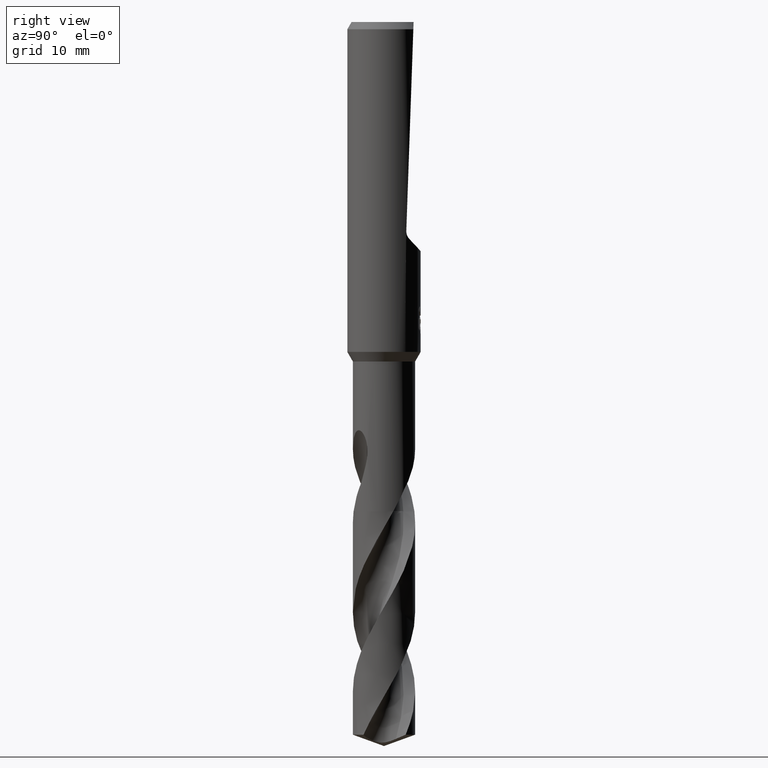
[diagram: clean part render]
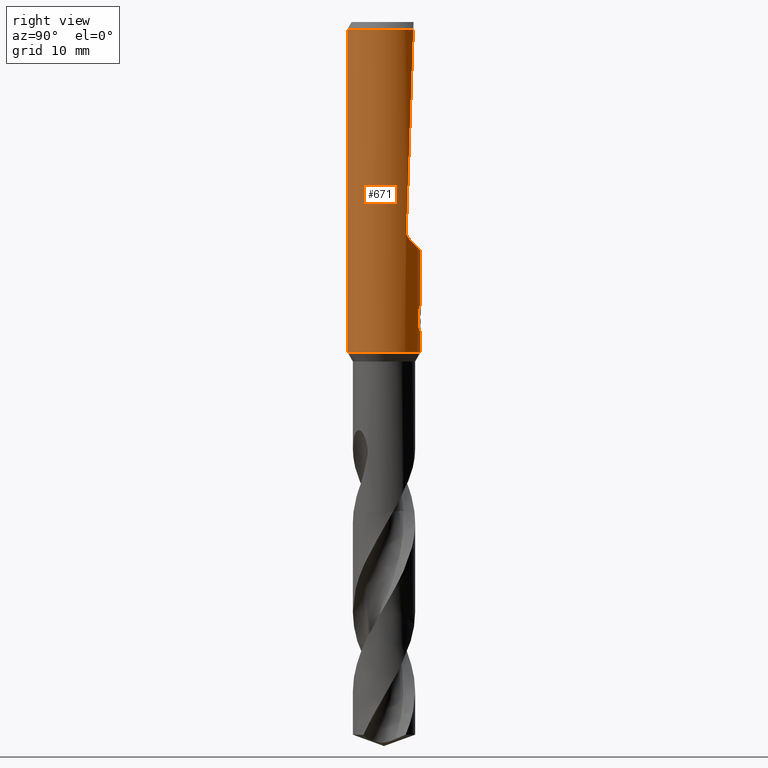
[diagram: same view with one face highlighted and labeled with its STEP entity id]
A machine part, right view. The second image highlights one B-rep face of the part: STEP entity #671.
In plain terms, the highlighted cylindrical surface (partial cylindrical patch) has radius 4 mm, axis along (-0, -0, 1).
Its self-contained STEP definition (entity closure, byte-faithful):
#307=EDGE_CURVE('',#715,#835,#870,.T.);
#347=VERTEX_POINT('',#916);
#359=VERTEX_POINT('',#928);
#373=VERTEX_POINT('',#943);
#439=EDGE_CURVE('',#595,#771,#1015,.T.);
#441=EDGE_CURVE('',#667,#373,#1017,.T.);
#459=VERTEX_POINT('',#1036);
#465=EDGE_CURVE('',#835,#751,#1043,.T.);
#471=EDGE_CURVE('',#491,#373,#1049,.T.);
#491=VERTEX_POINT('',#1071);
#497=VERTEX_POINT('',#1078);
#503=VERTEX_POINT('',#1084);
#545=VERTEX_POINT('',#1131);
#565=EDGE_CURVE('',#347,#497,#1154,.T.);
#595=VERTEX_POINT('',#1187);
#637=EDGE_CURVE('',#799,#491,#1234,.T.);
#641=EDGE_CURVE('',#667,#545,#1238,.T.);
#655=EDGE_CURVE('',#347,#359,#1254,.T.);
#659=EDGE_CURVE('',#771,#799,#1258,.T.);
#667=VERTEX_POINT('',#1266);
#671=ADVANCED_FACE('',(#1270),#1271,.T.);
#691=EDGE_CURVE('',#459,#751,#1294,.T.);
#715=VERTEX_POINT('',#1320);
#729=EDGE_CURVE('',#359,#459,#1335,.T.);
#751=VERTEX_POINT('',#1360);
#753=EDGE_CURVE('',#497,#503,#1362,.T.);
#767=EDGE_CURVE('',#545,#715,#1377,.T.);
#771=VERTEX_POINT('',#1381);
#799=VERTEX_POINT('',#1409);
#827=EDGE_CURVE('',#503,#595,#1439,.T.);
#835=VERTEX_POINT('',#1448);
#870=ELLIPSE('',#1483,114.614833391376,4.0);
#916=CARTESIAN_POINT('',(-6.37761657961682E-016,4.0,-34.0310253601033));
#928=CARTESIAN_POINT('',(0.0,4.0,-36.0));
#943=CARTESIAN_POINT('',(0.0,4.0,-32.0232688117743));
#1015=B_SPLINE_CURVE_WITH_KNOTS('',3,(#3304,#3305,#3306,#3307,#3308,#3309,#3310,#3311,#3312,#3313),.UNSPECIFIED.,.F.,.F.,(4,2,2,2,4),(8.07922159159579,8.38940045176896,8.69957931194214,9.01038857642139,9.32119784090064),.UNSPECIFIED.);
#1017=LINE('',#3316,#3317);
#1036=CARTESIAN_POINT('',(4.89842541528951E-016,-4.0,-36.0));
#1043=CIRCLE('',#3917,4.0);
#1049=B_SPLINE_CURVE_WITH_KNOTS('',3,(#3946,#3947,#3948,#3949,#3950,#3951,#3952,#3953,#3954,#3955,#3956,#3957,#3958,#3959,#3960,#3961,#3962,#3963,#3964,#3965,#3966,#3967,#3968,#3969,#3970,#3971,#3972),.UNSPECIFIED.,.F.,.F.,(4,2,3,2,2,2,2,2,2,2,2,2,4),(-0.543018145553855,-0.271509072776928,0.0,0.271509072776927,0.543018145553855,0.815414280910791,1.08781041626773,1.35870467547365,1.62959893467958,1.90093601549038,2.17227309630118,2.44361017711198,2.71494725792278),.UNSPECIFIED.);
#1071=CARTESIAN_POINT('',(0.799431726384364,3.91929954390451,-31.000000276873));
#1078=CARTESIAN_POINT('',(0.29010312703583,3.98946615171554,-33.9998328990228));
#1084=CARTESIAN_POINT('',(0.873560781758957,3.90344611344549,-32.3198931596091));
#1131=CARTESIAN_POINT('',(2.90106925914968,2.7538694873971,-23.6647266291147));
#1154=B_SPLINE_CURVE_WITH_KNOTS('',3,(#5666,#5667,#5668,#5669,#5670,#5671,#5672,#5673,#5674,#5675,#5676,#5677,#5678,#5679,#5680,#5681),.UNSPECIFIED.,.F.,.F.,(4,2,2,2,2,2,2,4),(5.59330412183837,6.21519943861119,6.52611580040833,6.83703216220547,7.14794852400261,7.45886488579976,7.76904377517712,8.07922266455448),.UNSPECIFIED.);
#1187=CARTESIAN_POINT('',(0.873560781758956,3.90344611344549,-33.7587351791531));
#1234=B_SPLINE_CURVE_WITH_KNOTS('',3,(#6626,#6627,#6628,#6629,#6630,#6631,#6632,#6633,#6634,#6635),.UNSPECIFIED.,.F.,.F.,(4,2,2,2,4),(0.621618550720989,0.932427826081483,1.24323710144198,1.55341597198189,1.8635948425218),.UNSPECIFIED.);
#1238=ELLIPSE('',#6640,5.8651167425585,4.0);
#1254=LINE('',#6704,#6705);
#1258=LINE('',#6711,#6712);
#1266=CARTESIAN_POINT('',(-4.89842541528951E-016,4.0,-25.0010379994371));
#1270=FACE_OUTER_BOUND('',#6728,.T.);
#1271=CYLINDRICAL_SURFACE('',#6729,4.0);
#1294=LINE('',#7012,#7013);
#1320=CARTESIAN_POINT('',(3.17557583065469,2.43222493691719,-22.8044492009967));
#1335=CIRCLE('',#7443,4.0);
#1360=CARTESIAN_POINT('',(4.89842541528951E-016,-4.0,-0.799999999999997));
#1362=ELLIPSE('',#7475,12.1919782934791,4.0);
#1377=B_SPLINE_CURVE_WITH_KNOTS('',3,(#7505,#7506,#7507,#7508,#7509,#7510,#7511,#7512,#7513,#7514,#7515,#7516),.UNSPECIFIED.,.F.,.F.,(4,2,2,2,2,4),(11.3584858949333,11.6841057456814,12.0097255964295,12.2731801338981,12.5366346713666,12.8000892088352),.UNSPECIFIED.);
#1381=CARTESIAN_POINT('',(1.33721006514658,3.76986329217263,-33.2901657003257));
#1409=CARTESIAN_POINT('',(1.33721006514658,3.76986329217263,-31.5150484364821));
#1439=LINE('',#7768,#7769);
#1448=CARTESIAN_POINT('',(2.39915011791252,3.20063723525806,-0.799999999999997));
#1483=AXIS2_PLACEMENT_3D('',#7835,#7836,#7837);
#3304=CARTESIAN_POINT('',(0.597825566619951,3.95507327263295,-33.9060822529338));
#3305=CARTESIAN_POINT('',(0.69796736707036,3.93993642812991,-33.8643738039892));
#3306=CARTESIAN_POINT('',(0.793686097648071,3.92151313976681,-33.8126197884223));
#3307=CARTESIAN_POINT('',(0.970367443122637,3.8815705522933,-33.6935130308195));
#3308=CARTESIAN_POINT('',(1.05133192391794,3.86008660197544,-33.6261512051772));
#3309=CARTESIAN_POINT('',(1.19470604884202,3.81814974811935,-33.4828594684698));
#3310=CARTESIAN_POINT('',(1.26216864117972,3.79617175021539,-33.401827240791));
#3311=CARTESIAN_POINT('',(1.38139933735972,3.75442745400946,-33.2250929426288));
#3312=CARTESIAN_POINT('',(1.43317984807825,3.73470372457547,-33.1293891903286));
#3313=CARTESIAN_POINT('',(1.47492142700079,3.7181456109429,-33.0292536952238));
#3316=CARTESIAN_POINT('',(-4.89842541528951E-016,4.0,-18.4));
#3317=VECTOR('',#7997,1.0);
#3917=AXIS2_PLACEMENT_3D('',#8012,#8013,#8014);
#3946=CARTESIAN_POINT('',(0.665279195004375,3.9442874632428,-30.8137529884524));
#3947=CARTESIAN_POINT('',(0.72877088492158,3.9335783806135,-30.8773526603125));
#3948=CARTESIAN_POINT('',(0.783944488018489,3.92260552826083,-30.957920893425));
#3949=CARTESIAN_POINT('',(0.857267073993339,3.90723639918054,-31.134802544027));
#3950=CARTESIAN_POINT('',(0.875400981188567,3.90303383563787,-31.2311389883278));
#3951=CARTESIAN_POINT('',(0.875400981188567,3.90303383563787,-31.3216420125868));
#3952=CARTESIAN_POINT('',(0.875400981188567,3.90303383563787,-31.4121450368458));
#3953=CARTESIAN_POINT('',(0.857267073993339,3.90723639918054,-31.5084814811466));
#3954=CARTESIAN_POINT('',(0.783944488018488,3.92260552826083,-31.6853631317485));
#3955=CARTESIAN_POINT('',(0.728770884921581,3.9335783806135,-31.765931364861));
#3956=CARTESIAN_POINT('',(0.601580067811904,3.95503153411898,-31.8933384986505));
#3957=CARTESIAN_POINT('',(0.520902117238449,3.96693827151805,-31.9487071231089));
#3958=CARTESIAN_POINT('',(0.343752086871948,3.98619778335453,-32.0223037477669));
#3959=CARTESIAN_POINT('',(0.247255556938652,3.99338316413851,-32.0405166027747));
#3960=CARTESIAN_POINT('',(0.0662974670001867,4.00046977119903,-32.0405166027747));
#3961=CARTESIAN_POINT('',(-0.0299674229107091,4.00086780861984,-32.0224830783564));
#3962=CARTESIAN_POINT('',(-0.206991592502204,3.99562207288533,-31.9491870835923));
#3963=CARTESIAN_POINT('',(-0.287758268875903,3.99014940483369,-31.8939303320089));
#3964=CARTESIAN_POINT('',(-0.415384305359873,3.97889009382894,-31.7664425414649));
#3965=CARTESIAN_POINT('',(-0.470753835570468,3.9723749730993,-31.6856442592887));
#3966=CARTESIAN_POINT('',(-0.544239101864661,3.96297563900076,-31.5084730190186));
#3967=CARTESIAN_POINT('',(-0.562348199187247,3.96027328638705,-31.4120877061904));
#3968=CARTESIAN_POINT('',(-0.562348199187247,3.96027328638705,-31.2311963189832));
#3969=CARTESIAN_POINT('',(-0.544239101864661,3.96297563900076,-31.134811006155));
#3970=CARTESIAN_POINT('',(-0.470753835570468,3.9723749730993,-30.9576397658849));
#3971=CARTESIAN_POINT('',(-0.415384305359873,3.97889009382894,-30.8768414837086));
#3972=CARTESIAN_POINT('',(-0.351519173230209,3.98452434687649,-30.8130455309993));
#5666=CARTESIAN_POINT('',(-1.53169074080201,3.69512157777541,-33.0291469804961));
#5667=CARTESIAN_POINT('',(-1.44828662161398,3.72969396308271,-33.2292685117474));
#5668=CARTESIAN_POINT('',(-1.3235119204923,3.77766697431007,-33.4106519059977));
#5669=CARTESIAN_POINT('',(-1.10876972720289,3.84398770228913,-33.6255223555534));
#5670=CARTESIAN_POINT('',(-1.02784628500841,3.86675406900514,-33.6929304922165));
#5671=CARTESIAN_POINT('',(-0.851215741256186,3.9094356085587,-33.8121513963803));
#5672=CARTESIAN_POINT('',(-0.755506440008018,3.92931563110609,-33.8639734861066));
#5673=CARTESIAN_POINT('',(-0.55516132520436,3.96258844897707,-33.9475385932463));
#5674=CARTESIAN_POINT('',(-0.450345578096092,3.97598591776774,-33.9793474763458));
#5675=CARTESIAN_POINT('',(-0.238765831475676,3.99427916347003,-34.0212208804589));
#5676=CARTESIAN_POINT('',(-0.131998351317953,3.99916459194608,-34.0312723335086));
#5677=CARTESIAN_POINT('',(0.0750281946656646,4.00063255933723,-34.0312723335086));
#5678=CARTESIAN_POINT('',(0.181611397509719,3.99727906083033,-34.0212676362976));
#5679=CARTESIAN_POINT('',(0.392937729655654,3.98206259750675,-33.9795209106323));
#5680=CARTESIAN_POINT('',(0.497684032548134,3.97021008398904,-33.9477911393989));
#5681=CARTESIAN_POINT('',(0.597825841435798,3.9550732310934,-33.9060826866649));
#6626=CARTESIAN_POINT('',(1.47492143493287,3.71814560779639,-31.7759604553563));
#6627=CARTESIAN_POINT('',(1.43317985453682,3.73470372211652,-31.6758249567768));
#6628=CARTESIAN_POINT('',(1.38139934199221,3.7544274523428,-31.5801212011595));
#6629=CARTESIAN_POINT('',(1.26216864159784,3.79617175011376,-31.4033868968692));
#6630=CARTESIAN_POINT('',(1.1947060468711,3.8181497487877,-31.3223546663791));
#6631=CARTESIAN_POINT('',(1.0513319169546,3.86008660392055,-31.1790629248092));
#6632=CARTESIAN_POINT('',(0.970367433401024,3.88157055479408,-31.1117010969221));
#6633=CARTESIAN_POINT('',(0.793686081906958,3.92151314302242,-30.9925943353462));
#6634=CARTESIAN_POINT('',(0.697967348067752,3.93993643158254,-30.9408403180509));
#6635=CARTESIAN_POINT('',(0.597825544213158,3.95507327601983,-30.8991318677171));
#6640=AXIS2_PLACEMENT_3D('',#8243,#8244,#8245);
#6704=CARTESIAN_POINT('',(-4.89842541528951E-016,4.0,-18.4));
#6705=VECTOR('',#8268,1.0);
#6711=CARTESIAN_POINT('',(1.33721006514658,3.76986329217263,-32.4026070684039));
#6712=VECTOR('',#8272,1.0);
#6728=EDGE_LOOP('',(#8274,#8275,#8276,#8277,#8278,#8279,#8280,#8281,#8282,#8283,#8284,#8285,#8286,#8287,#8288));
#6729=AXIS2_PLACEMENT_3D('',#8289,#8290,#8291);
#7012=CARTESIAN_POINT('',(4.89842541528951E-016,-4.0,-18.4));
#7013=VECTOR('',#8317,1.0);
#7443=AXIS2_PLACEMENT_3D('',#8345,#8346,#8347);
#7475=AXIS2_PLACEMENT_3D('',#8379,#8380,#8381);
#7505=CARTESIAN_POINT('',(2.72825811350288,2.92516797228906,-23.8164335616677));
#7506=CARTESIAN_POINT('',(2.79934898450475,2.85886263617018,-23.7681571568462));
#7507=CARTESIAN_POINT('',(2.87037562163102,2.78727750482259,-23.7050263576755));
#7508=CARTESIAN_POINT('',(2.99188729278926,2.65642284716352,-23.5529400608025));
#7509=CARTESIAN_POINT('',(3.04244445655147,2.59747996728043,-23.4637614123037));
#7510=CARTESIAN_POINT('',(3.10947264435204,2.51662199005865,-23.2978526284994));
#7511=CARTESIAN_POINT('',(3.13500705494615,2.48444398927719,-23.2110167610061));
#7512=CARTESIAN_POINT('',(3.16830826056413,2.44183412236597,-23.0291690242009));
#7513=CARTESIAN_POINT('',(3.17613558772012,2.4314939293401,-22.9341467761959));
#7514=CARTESIAN_POINT('',(3.17613558772012,2.4314939293401,-22.7585104178835));
#7515=CARTESIAN_POINT('',(3.16830826056413,2.44183412236597,-22.6634881698785));
#7516=CARTESIAN_POINT('',(3.1516576577551,2.46313905582159,-22.5725643014759));
#7768=CARTESIAN_POINT('',(0.873560781758957,3.90344611344549,-33.0393141693811));
#7769=VECTOR('',#8416,1.0);
#7835=CARTESIAN_POINT('',(0.0,0.0,-92.4542585355811));
#7836=DIRECTION('',(0.0,-0.999390827019096,0.0348994967025007));
#7837=DIRECTION('',(0.0,0.0348994967025007,0.999390827019096));
#7997=DIRECTION('',(0.0,0.0,-1.0));
#8012=CARTESIAN_POINT('',(0.0,0.0,-0.799999999999997));
#8013=DIRECTION('',(0.0,0.0,-1.0));
#8014=DIRECTION('',(0.0,1.0,0.0));
#8243=CARTESIAN_POINT('',(0.0,0.0,-20.7115631593383));
#8244=DIRECTION('',(0.0,-0.73135370161917,-0.681998360062499));
#8245=DIRECTION('',(0.0,0.681998360062499,-0.73135370161917));
#8268=DIRECTION('',(0.0,0.0,-1.0));
#8272=DIRECTION('',(-0.0,-0.0,1.0));
#8274=ORIENTED_EDGE('',*,*,#441,.F.);
#8275=ORIENTED_EDGE('',*,*,#641,.T.);
#8276=ORIENTED_EDGE('',*,*,#767,.T.);
#8277=ORIENTED_EDGE('',*,*,#307,.T.);
#8278=ORIENTED_EDGE('',*,*,#465,.T.);
#8279=ORIENTED_EDGE('',*,*,#691,.F.);
#8280=ORIENTED_EDGE('',*,*,#729,.F.);
#8281=ORIENTED_EDGE('',*,*,#655,.F.);
#8282=ORIENTED_EDGE('',*,*,#565,.T.);
#8283=ORIENTED_EDGE('',*,*,#753,.T.);
#8284=ORIENTED_EDGE('',*,*,#827,.T.);
#8285=ORIENTED_EDGE('',*,*,#439,.T.);
#8286=ORIENTED_EDGE('',*,*,#659,.T.);
#8287=ORIENTED_EDGE('',*,*,#637,.T.);
#8288=ORIENTED_EDGE('',*,*,#471,.T.);
#8289=CARTESIAN_POINT('',(0.0,0.0,-18.4));
#8290=DIRECTION('',(-0.0,-0.0,1.0));
#8291=DIRECTION('',(0.0,1.0,0.0));
#8317=DIRECTION('',(-0.0,-0.0,1.0));
#8345=CARTESIAN_POINT('',(0.0,0.0,-36.0));
#8346=DIRECTION('',(0.0,0.0,-1.0));
#8347=DIRECTION('',(0.0,1.0,0.0));
#8379=CARTESIAN_POINT('',(0.0,0.0,-34.8351219173269));
#8380=DIRECTION('',(0.944648353914092,0.0,-0.328084573619969));
#8381=DIRECTION('',(0.328084573619968,-0.0,0.944648353914092));
#8416=DIRECTION('',(0.0,0.0,-1.0));